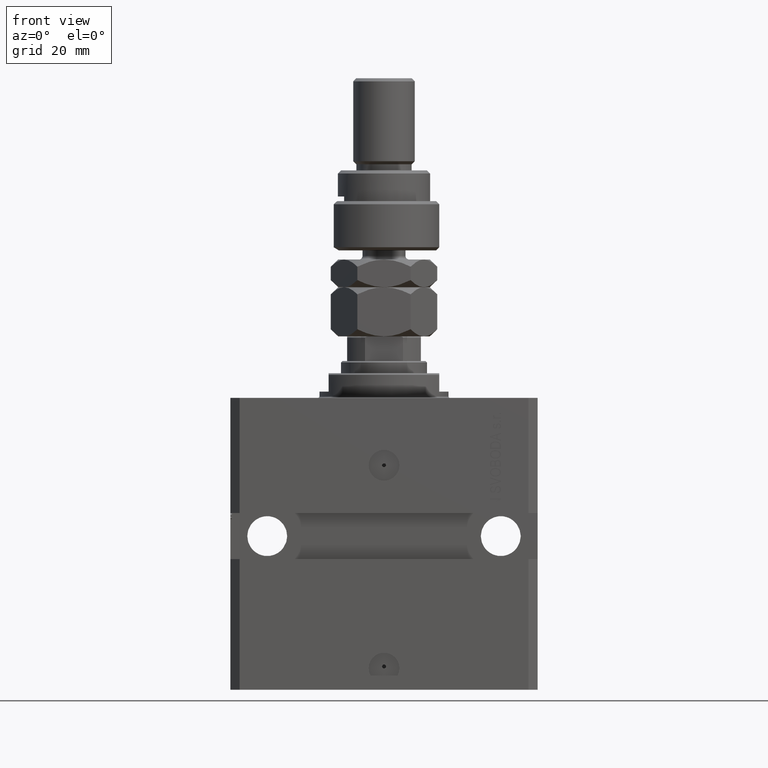
[diagram: clean part render]
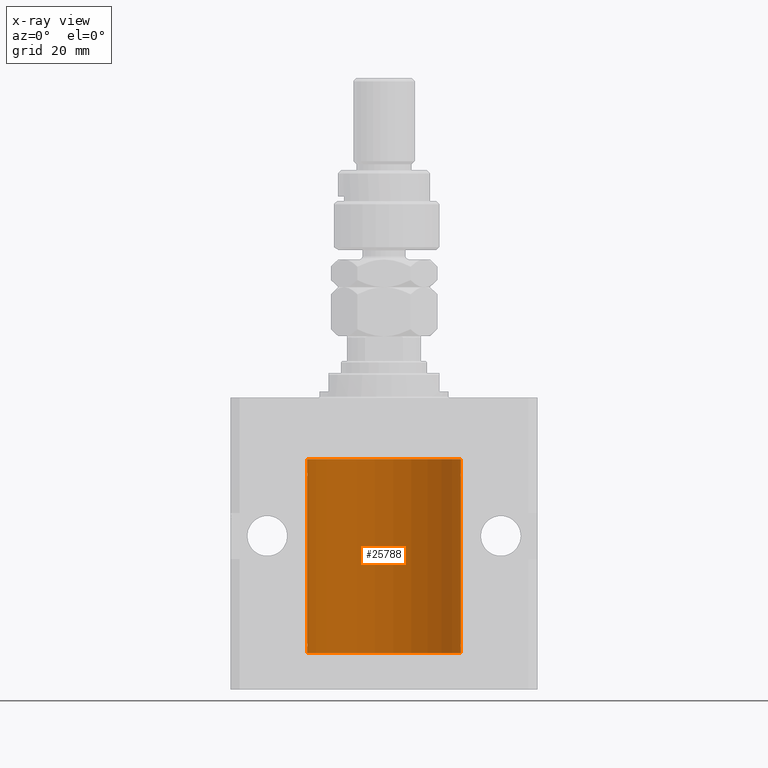
[diagram: x-ray — body ghosted, one internal face saturated and labeled with its STEP entity id]
A machine part, front view, then the same camera in x-ray: the body is ghosted and one INTERNAL B-rep face — a face not visible from any outside direction — is saturated and labeled: STEP entity #25788.
In plain terms, the highlighted cylindrical surface (partial cylindrical patch) has radius 25 mm, axis along (0, 0, 1).
Its self-contained STEP definition (entity closure, byte-faithful):
#138 = VERTEX_POINT ( 'NONE', #32844 ) ;
#199 = DIRECTION ( 'NONE',  ( -0.000000000000000000, -0.000000000000000000, 1.000000000000000000 ) ) ;
#363 = DIRECTION ( 'NONE',  ( 1.000000000000000000, 0.000000000000000000, 0.000000000000000000 ) ) ;
#412 = VERTEX_POINT ( 'NONE', #49446 ) ;
#952 = LINE ( 'NONE', #47413, #20054 ) ;
#1263 = CARTESIAN_POINT ( 'NONE',  ( -24.99402840204668408, 0.5587119681668529791, -80.82511555871103326 ) ) ;
#1390 = B_SPLINE_CURVE_WITH_KNOTS ( 'NONE', 3,
 ( #33629, #37740, #9637, #10138, #29237, #49354, #2403, #18144 ),
 .UNSPECIFIED., .F., .F.,
 ( 4, 2, 2, 4 ),
 ( 2.356374505740030593E-18, 0.0002443193446654823016, 0.0004886386893309623263, 0.0009772773786619218337 ),
 .UNSPECIFIED. ) ;
#1808 = ORIENTED_EDGE ( 'NONE', *, *, #8097, .F. ) ;
#2163 = EDGE_CURVE ( 'NONE', #42152, #6945, #41523, .T. ) ;
#2403 = CARTESIAN_POINT ( 'NONE',  ( 24.99218627891524136, 0.6250000000003219647, -80.66310615504829684 ) ) ;
#3064 = CARTESIAN_POINT ( 'NONE',  ( 0.000000000000000000, 0.000000000000000000, -83.09999999999999432 ) ) ;
#3250 = ORIENTED_EDGE ( 'NONE', *, *, #49929, .T. ) ;
#3497 = EDGE_CURVE ( 'NONE', #7284, #12139, #17072, .T. ) ;
#3873 = CARTESIAN_POINT ( 'NONE',  ( 25.00000000000008171, 3.486950283966777142E-13, -24.37499999999673150 ) ) ;
#3921 = CARTESIAN_POINT ( 'NONE',  ( -25.00000000000001421, 0.08259386895071110790, -24.37500000000000000 ) ) ;
#4577 = VECTOR ( 'NONE', #43318, 1000.000000000000000 ) ;
#4861 = CARTESIAN_POINT ( 'NONE',  ( -25.00000000000000000, 0.08259386895070071344, -79.87500000000000000 ) ) ;
#4967 = ORIENTED_EDGE ( 'NONE', *, *, #30942, .T. ) ;
#5108 = CARTESIAN_POINT ( 'NONE',  ( -24.99815474281802352, 0.3253832813992149631, -81.05855609393753980 ) ) ;
#5135 = DIRECTION ( 'NONE',  ( -0.000000000000000000, -0.000000000000000000, 1.000000000000000000 ) ) ;
#5615 = CARTESIAN_POINT ( 'NONE',  ( -25.00000000000000000, -2.172643007029407462E-14, -79.87500000000000000 ) ) ;
#5988 = CARTESIAN_POINT ( 'NONE',  ( 25.00000000000000000, 5.649527105131028858E-17, -25.62500000000000355 ) ) ;
#6506 = CARTESIAN_POINT ( 'NONE',  ( 24.99812887437769859, 0.3150953964768999360, -25.54594609348567502 ) ) ;
#6859 = VECTOR ( 'NONE', #8553, 1000.000000000000000 ) ;
#6945 = VERTEX_POINT ( 'NONE', #3873 ) ;
#7284 = VERTEX_POINT ( 'NONE', #45638 ) ;
#7535 = CARTESIAN_POINT ( 'NONE',  ( -24.99999999999998934, 0.1631672031814573320, -25.62499999999985079 ) ) ;
#7574 = ORIENTED_EDGE ( 'NONE', *, *, #37986, .T. ) ;
#8097 = EDGE_CURVE ( 'NONE', #13413, #7284, #17743, .T. ) ;
#8553 = DIRECTION ( 'NONE',  ( -0.000000000000000000, -0.000000000000000000, 1.000000000000000000 ) ) ;
#8996 = CARTESIAN_POINT ( 'NONE',  ( -24.99999999999998579, 0.1631672031814578039, -81.12499999999981526 ) ) ;
#9301 = EDGE_LOOP ( 'NONE', ( #21941, #1808, #19166, #40598, #3250, #14351, #31233, #37423, #4967, #22996, #38347, #7574, #33168, #39072 ) ) ;
#9637 = CARTESIAN_POINT ( 'NONE',  ( 24.99957883295564187, 0.1636780489658792026, -81.10872961334236209 ) ) ;
#10138 = CARTESIAN_POINT ( 'NONE',  ( 24.99812887437770570, 0.3150953964769092064, -81.04594609348566792 ) ) ;
#10679 = CARTESIAN_POINT ( 'NONE',  ( 24.99218627891526268, 0.6249999999996038724, -24.83696777940135192 ) ) ;
#11007 = EDGE_CURVE ( 'NONE', #25441, #412, #1390, .T. ) ;
#11656 = CARTESIAN_POINT ( 'NONE',  ( 24.99999999999999645, 0.1631302137355208348, -79.87500000000017053 ) ) ;
#11918 = CARTESIAN_POINT ( 'NONE',  ( 24.99815573945175373, 0.3253059702579679247, -79.94140848432689950 ) ) ;
#11940 = CARTESIAN_POINT ( 'NONE',  ( -25.00000000000008171, 3.517566579358498221E-13, -81.12500000000328271 ) ) ;
#11984 = CARTESIAN_POINT ( 'NONE',  ( 0.000000000000000000, 0.000000000000000000, -20.00000000000000355 ) ) ;
#12139 = VERTEX_POINT ( 'NONE', #11940 ) ;
#12876 = CARTESIAN_POINT ( 'NONE',  ( -25.00000000000008171, 3.517566579358498221E-13, -81.12500000000328271 ) ) ;
#13413 = VERTEX_POINT ( 'NONE', #26741 ) ;
#14351 = ORIENTED_EDGE ( 'NONE', *, *, #33146, .T. ) ;
#15880 = VECTOR ( 'NONE', #5135, 1000.000000000000000 ) ;
#16325 = CARTESIAN_POINT ( 'NONE',  ( 25.00000000000000000, 0.000000000000000000, -83.09999999999999432 ) ) ;
#16705 = DIRECTION ( 'NONE',  ( -0.000000000000000000, -0.000000000000000000, 1.000000000000000000 ) ) ;
#16724 = CARTESIAN_POINT ( 'NONE',  ( 25.00000000000000000, 0.000000000000000000, -83.09999999999999432 ) ) ;
#17072 = LINE ( 'NONE', #44924, #6859 ) ;
#17743 = CIRCLE ( 'NONE', #44125, 25.00000000000000000 ) ;
#18144 = CARTESIAN_POINT ( 'NONE',  ( 24.99218627891505307, 0.6250000000082391871, -80.49999999999907629 ) ) ;
#18353 = CARTESIAN_POINT ( 'NONE',  ( 25.00000000000000000, -2.424731304940744339E-15, -81.12500000000000000 ) ) ;
#18386 = CARTESIAN_POINT ( 'NONE',  ( 24.99405112861447265, 0.5574133879603401232, -25.32638777868982061 ) ) ;
#18431 = LINE ( 'NONE', #50160, #21403 ) ;
#18891 = CARTESIAN_POINT ( 'NONE',  ( 24.99218627891505307, 0.6250000000082325258, -24.99999999999907629 ) ) ;
#19166 = ORIENTED_EDGE ( 'NONE', *, *, #39068, .T. ) ;
#19630 = CARTESIAN_POINT ( 'NONE',  ( 24.99218627891505307, 0.6250000000082325258, -24.99999999999907629 ) ) ;
#19697 = CARTESIAN_POINT ( 'NONE',  ( 24.99999999999999645, 0.1631302137355183646, -24.37500000000015277 ) ) ;
#19912 = CARTESIAN_POINT ( 'NONE',  ( -24.99402840204668408, 0.5587119681668532012, -25.32511555871104747 ) ) ;
#20054 = VECTOR ( 'NONE', #16705, 1000.000000000000000 ) ;
#20072 = LINE ( 'NONE', #16724, #4577 ) ;
#21403 = VECTOR ( 'NONE', #26669, 1000.000000000000000 ) ;
#21941 = ORIENTED_EDGE ( 'NONE', *, *, #3497, .F. ) ;
#22163 = B_SPLINE_CURVE_WITH_KNOTS ( 'NONE', 3,
 ( #5615, #4861, #36612, #31970, #32739, #44866, #40478, #47958, #1263, #5108, #8996, #12876 ),
 .UNSPECIFIED., .F., .F.,
 ( 4, 2, 2, 2, 2, 4 ),
 ( 1.760582088384631428E-18, 0.0002442639708601806493, 0.0004885279417203595639, 0.0009770558834406879029, 0.001465583825161016242, 0.001954111766881344581 ),
 .UNSPECIFIED. ) ;
#22211 = EDGE_CURVE ( 'NONE', #40777, #49639, #43861, .T. ) ;
#22505 = CARTESIAN_POINT ( 'NONE',  ( 24.99711042419772866, 0.3844422150124099380, -25.49948233212518645 ) ) ;
#22996 = ORIENTED_EDGE ( 'NONE', *, *, #22211, .T. ) ;
#23524 = CARTESIAN_POINT ( 'NONE',  ( 24.99218627891524491, 0.6250000000003173017, -25.16310615504827908 ) ) ;
#23534 = CARTESIAN_POINT ( 'NONE',  ( -25.00000000000000000, -9.603917560234690571E-15, -24.37500000000000000 ) ) ;
#23763 = B_SPLINE_CURVE_WITH_KNOTS ( 'NONE', 3,
 ( #42393, #47258, #50876, #11918, #11656, #47518 ),
 .UNSPECIFIED., .F., .F.,
 ( 4, 2, 4 ),
 ( 0.0009772773786619218337, 0.001465694572771605777, 0.001954111766881289937 ),
 .UNSPECIFIED. ) ;
#23784 = CARTESIAN_POINT ( 'NONE',  ( -24.99405295648008263, 0.5573304927633336847, -24.67348832933669200 ) ) ;
#24684 = CARTESIAN_POINT ( 'NONE',  ( -25.00000000000008171, 3.517566451145503275E-13, -25.62500000000326850 ) ) ;
#25441 = VERTEX_POINT ( 'NONE', #18353 ) ;
#25788 = ADVANCED_FACE ( 'NONE', ( #31173 ), #46406, .F. ) ;
#26114 = CARTESIAN_POINT ( 'NONE',  ( 25.00000000000000355, 0.08261259269783348402, -25.62500000000000000 ) ) ;
#26407 = CARTESIAN_POINT ( 'NONE',  ( 24.99815573945175373, 0.3253059702579641499, -24.44140848432692081 ) ) ;
#26669 = DIRECTION ( 'NONE',  ( -0.000000000000000000, -0.000000000000000000, 1.000000000000000000 ) ) ;
#26741 = CARTESIAN_POINT ( 'NONE',  ( 25.00000000000000000, 0.000000000000000000, -83.09999999999999432 ) ) ;
#26904 = DIRECTION ( 'NONE',  ( -0.000000000000000000, -0.000000000000000000, 1.000000000000000000 ) ) ;
#27553 = DIRECTION ( 'NONE',  ( 1.000000000000000000, 0.000000000000000000, 0.000000000000000000 ) ) ;
#28194 = EDGE_CURVE ( 'NONE', #48976, #49639, #952, .T. ) ;
#28311 = CARTESIAN_POINT ( 'NONE',  ( -25.00000000000000000, -9.603917560234690571E-15, -24.37500000000000000 ) ) ;
#28370 = VECTOR ( 'NONE', #26904, 1000.000000000000000 ) ;
#28703 = VERTEX_POINT ( 'NONE', #47729 ) ;
#28933 = B_SPLINE_CURVE_WITH_KNOTS ( 'NONE', 3,
 ( #23534, #3921, #39018, #42909, #39281, #23784, #35162, #47270, #19912, #39529, #7535, #47015 ),
 .UNSPECIFIED., .F., .F.,
 ( 4, 2, 2, 2, 2, 4 ),
 ( 4.396951630244787669E-19, 0.0002442639708601663379, 0.0004885279417203322420, 0.0009770558834406712061, 0.001465583825161009953, 0.001954111766881348917 ),
 .UNSPECIFIED. ) ;
#28976 = VERTEX_POINT ( 'NONE', #24684 ) ;
#28997 = AXIS2_PLACEMENT_3D ( 'NONE', #11984, #43722, #363 ) ;
#29237 = CARTESIAN_POINT ( 'NONE',  ( 24.99711042419772511, 0.3844422150124162108, -80.99948233212519710 ) ) ;
#29338 = B_SPLINE_CURVE_WITH_KNOTS ( 'NONE', 3,
 ( #5988, #26114, #41879, #6506, #22505, #18386, #23524, #18891 ),
 .UNSPECIFIED., .F., .F.,
 ( 4, 2, 2, 4 ),
 ( 5.490258492927436848E-20, 0.0002443193446654762300, 0.0004886386893309524601, 0.0009772773786619120759 ),
 .UNSPECIFIED. ) ;
#30292 = CARTESIAN_POINT ( 'NONE',  ( 24.99218627891505307, 0.6250000000082325258, -24.99999999999907629 ) ) ;
#30537 = VERTEX_POINT ( 'NONE', #44814 ) ;
#30657 = DIRECTION ( 'NONE',  ( 0.000000000000000000, 0.000000000000000000, 1.000000000000000000 ) ) ;
#30922 = DIRECTION ( 'NONE',  ( 1.000000000000000000, 0.000000000000000000, 0.000000000000000000 ) ) ;
#30942 = EDGE_CURVE ( 'NONE', #6945, #40777, #39292, .T. ) ;
#31173 = FACE_OUTER_BOUND ( 'NONE', #9301, .T. ) ;
#31233 = ORIENTED_EDGE ( 'NONE', *, *, #49834, .T. ) ;
#31559 = CARTESIAN_POINT ( 'NONE',  ( 25.00000000000008171, 3.486950283966777142E-13, -24.37499999999673150 ) ) ;
#31970 = CARTESIAN_POINT ( 'NONE',  ( -24.99812965334069759, 0.3150303239408748790, -79.95401901831677094 ) ) ;
#32739 = CARTESIAN_POINT ( 'NONE',  ( -24.99711159039963704, 0.3843660423108775648, -80.00046193055077026 ) ) ;
#32844 = CARTESIAN_POINT ( 'NONE',  ( 25.00000000000008171, 3.486950403907965962E-13, -79.87499999999673150 ) ) ;
#33146 = EDGE_CURVE ( 'NONE', #138, #30537, #20072, .T. ) ;
#33168 = ORIENTED_EDGE ( 'NONE', *, *, #47923, .F. ) ;
#33629 = CARTESIAN_POINT ( 'NONE',  ( 25.00000000000000000, -2.424731304940744339E-15, -81.12500000000000000 ) ) ;
#35162 = CARTESIAN_POINT ( 'NONE',  ( -24.99218772708281477, 0.6249420913990341164, -24.83671206966754852 ) ) ;
#35558 = CARTESIAN_POINT ( 'NONE',  ( 0.000000000000000000, 0.000000000000000000, -83.09999999999999432 ) ) ;
#36612 = CARTESIAN_POINT ( 'NONE',  ( -24.99957903978828000, 0.1636401650351763382, -79.89126259047981193 ) ) ;
#36876 = CARTESIAN_POINT ( 'NONE',  ( -25.00000000000000000, 3.061616997868383043E-15, -83.09999999999999432 ) ) ;
#37120 = LINE ( 'NONE', #36876, #15880 ) ;
#37389 = EDGE_CURVE ( 'NONE', #28703, #12139, #22163, .T. ) ;
#37423 = ORIENTED_EDGE ( 'NONE', *, *, #2163, .T. ) ;
#37740 = CARTESIAN_POINT ( 'NONE',  ( 25.00000000000000355, 0.08261259269783381709, -81.12500000000001421 ) ) ;
#37986 = EDGE_CURVE ( 'NONE', #48976, #28976, #28933, .T. ) ;
#38347 = ORIENTED_EDGE ( 'NONE', *, *, #28194, .F. ) ;
#39018 = CARTESIAN_POINT ( 'NONE',  ( -24.99957903978827289, 0.1636401650351867743, -24.39126259047981904 ) ) ;
#39047 = CARTESIAN_POINT ( 'NONE',  ( -25.00000000000000000, 3.061616997868383043E-15, -20.00000000000000355 ) ) ;
#39068 = EDGE_CURVE ( 'NONE', #13413, #25441, #18431, .T. ) ;
#39072 = ORIENTED_EDGE ( 'NONE', *, *, #37389, .T. ) ;
#39281 = CARTESIAN_POINT ( 'NONE',  ( -24.99711159039964414, 0.3843660423108813950, -24.50046193055078803 ) ) ;
#39292 = LINE ( 'NONE', #16325, #28370 ) ;
#39529 = CARTESIAN_POINT ( 'NONE',  ( -24.99815474281801997, 0.3253832813992120210, -25.55855609393753269 ) ) ;
#40478 = CARTESIAN_POINT ( 'NONE',  ( -24.99218772708281122, 0.6249420913990306747, -80.33671206966755562 ) ) ;
#40598 = ORIENTED_EDGE ( 'NONE', *, *, #11007, .T. ) ;
#40777 = VERTEX_POINT ( 'NONE', #50490 ) ;
#41523 = B_SPLINE_CURVE_WITH_KNOTS ( 'NONE', 3,
 ( #30292, #10679, #42171, #26407, #19697, #31559 ),
 .UNSPECIFIED., .F., .F.,
 ( 4, 2, 4 ),
 ( 0.0009772773786619120759, 0.001465694572771597754, 0.001954111766881283432 ),
 .UNSPECIFIED. ) ;
#41879 = CARTESIAN_POINT ( 'NONE',  ( 24.99957883295564187, 0.1636780489658712090, -25.60872961334235498 ) ) ;
#42152 = VERTEX_POINT ( 'NONE', #19630 ) ;
#42171 = CARTESIAN_POINT ( 'NONE',  ( 24.99403021173655404, 0.5586305782632567940, -24.67476111441487063 ) ) ;
#42192 = AXIS2_PLACEMENT_3D ( 'NONE', #35558, #199, #27553 ) ;
#42393 = CARTESIAN_POINT ( 'NONE',  ( 24.99218627891505307, 0.6250000000082391871, -80.49999999999907629 ) ) ;
#42909 = CARTESIAN_POINT ( 'NONE',  ( -24.99812965334069403, 0.3150303239408847600, -24.45401901831676383 ) ) ;
#43318 = DIRECTION ( 'NONE',  ( -0.000000000000000000, -0.000000000000000000, 1.000000000000000000 ) ) ;
#43722 = DIRECTION ( 'NONE',  ( 0.000000000000000000, 0.000000000000000000, 1.000000000000000000 ) ) ;
#43861 = CIRCLE ( 'NONE', #28997, 25.00000000000000000 ) ;
#44125 = AXIS2_PLACEMENT_3D ( 'NONE', #3064, #30657, #30922 ) ;
#44814 = CARTESIAN_POINT ( 'NONE',  ( 25.00000000000000000, 5.649527105131028858E-17, -25.62500000000000355 ) ) ;
#44866 = CARTESIAN_POINT ( 'NONE',  ( -24.99405295648007908, 0.5573304927633301320, -80.17348832933667779 ) ) ;
#44924 = CARTESIAN_POINT ( 'NONE',  ( -25.00000000000000000, 3.061616997868383043E-15, -83.09999999999999432 ) ) ;
#45638 = CARTESIAN_POINT ( 'NONE',  ( -25.00000000000000000, 3.061616997868383043E-15, -83.09999999999999432 ) ) ;
#46406 = CYLINDRICAL_SURFACE ( 'NONE', #42192, 25.00000000000000000 ) ;
#47015 = CARTESIAN_POINT ( 'NONE',  ( -25.00000000000008171, 3.517566451145503275E-13, -25.62500000000326850 ) ) ;
#47258 = CARTESIAN_POINT ( 'NONE',  ( 24.99218627891526268, 0.6249999999996124211, -80.33696777940136258 ) ) ;
#47270 = CARTESIAN_POINT ( 'NONE',  ( -24.99218483271614843, 0.6250578298876515726, -25.16284432778144975 ) ) ;
#47413 = CARTESIAN_POINT ( 'NONE',  ( -25.00000000000000000, 3.061616997868383043E-15, -83.09999999999999432 ) ) ;
#47518 = CARTESIAN_POINT ( 'NONE',  ( 25.00000000000008171, 3.486950403907965962E-13, -79.87499999999673150 ) ) ;
#47729 = CARTESIAN_POINT ( 'NONE',  ( -25.00000000000000000, -2.172643007029407462E-14, -79.87500000000000000 ) ) ;
#47923 = EDGE_CURVE ( 'NONE', #28703, #28976, #37120, .T. ) ;
#47958 = CARTESIAN_POINT ( 'NONE',  ( -24.99218483271614843, 0.6250578298876484640, -80.66284432778144264 ) ) ;
#48976 = VERTEX_POINT ( 'NONE', #28311 ) ;
#49354 = CARTESIAN_POINT ( 'NONE',  ( 24.99405112861447265, 0.5574133879603476727, -80.82638777868982061 ) ) ;
#49446 = CARTESIAN_POINT ( 'NONE',  ( 24.99218627891505307, 0.6250000000082391871, -80.49999999999907629 ) ) ;
#49639 = VERTEX_POINT ( 'NONE', #39047 ) ;
#49834 = EDGE_CURVE ( 'NONE', #30537, #42152, #29338, .T. ) ;
#49929 = EDGE_CURVE ( 'NONE', #412, #138, #23763, .T. ) ;
#50160 = CARTESIAN_POINT ( 'NONE',  ( 25.00000000000000000, 0.000000000000000000, -83.09999999999999432 ) ) ;
#50490 = CARTESIAN_POINT ( 'NONE',  ( 25.00000000000000000, 0.000000000000000000, -20.00000000000000355 ) ) ;
#50876 = CARTESIAN_POINT ( 'NONE',  ( 24.99403021173655404, 0.5586305782632625672, -80.17476111441484932 ) ) ;